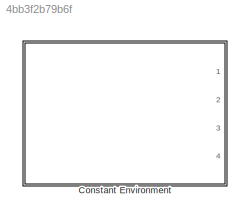
MODEL slx_4bb3f2b79b6f
KIND library
CONFIG AbsTol = auto
CONFIG EnableMultiTasking = off
CONFIG FixedStep = auto
CONFIG MaxStep = auto
CONFIG MinStep = auto
CONFIG RelTol = 1e-3
CONFIG SampleTimeConstraint = Unconstrained
CONFIG Solver = VariableStepAuto
CONFIG SolverName = VariableStepAuto
CONFIG StartTime = 0.0
CONFIG StopTime = 10.0
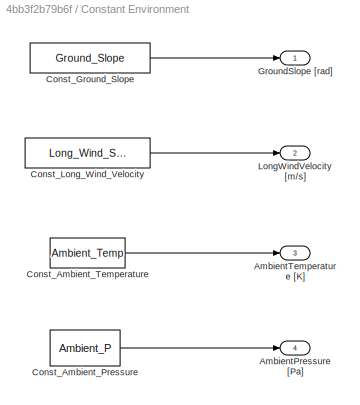
BLOCK [SubSystem] Constant Environment
  Ports = [0, 4]
  RequestExecContextInheritance = off
BLOCK [Outport] Constant Environment/AmbientPressure [Pa]
  IconDisplay = Port number
  Port = 4
  SampleTime = GlobalSampleTime
BLOCK [Outport] Constant Environment/AmbientTemperature [K]
  IconDisplay = Port number
  Port = 3
  SampleTime = GlobalSampleTime
BLOCK [Constant] Constant Environment/Const_Ambient_Pressure
  SampleTime = LocalSampleTime
  Value = Ambient_P
BLOCK [Constant] Constant Environment/Const_Ambient_Temperature
  SampleTime = LocalSampleTime
  Value = Ambient_Temp
BLOCK [Constant] Constant Environment/Const_Ground_Slope
  SampleTime = LocalSampleTime
  Value = Ground_Slope
BLOCK [Constant] Constant Environment/Const_Long_Wind_Velocity
  SampleTime = LocalSampleTime
  Value = Long_Wind_Speed
BLOCK [Outport] Constant Environment/GroundSlope [rad]
  IconDisplay = Port number
  SampleTime = GlobalSampleTime
BLOCK [Outport] Constant Environment/LongWindVelocity [m//s]
  IconDisplay = Port number
  Port = 2
  SampleTime = GlobalSampleTime
LINE Constant Environment/Const_Ambient_Pressure:1 -> Constant Environment/AmbientPressure [Pa]:1
LINE Constant Environment/Const_Ambient_Temperature:1 -> Constant Environment/AmbientTemperature [K]:1
LINE Constant Environment/Const_Ground_Slope:1 -> Constant Environment/GroundSlope [rad]:1
LINE Constant Environment/Const_Long_Wind_Velocity:1 -> Constant Environment/LongWindVelocity [m//s]:1
